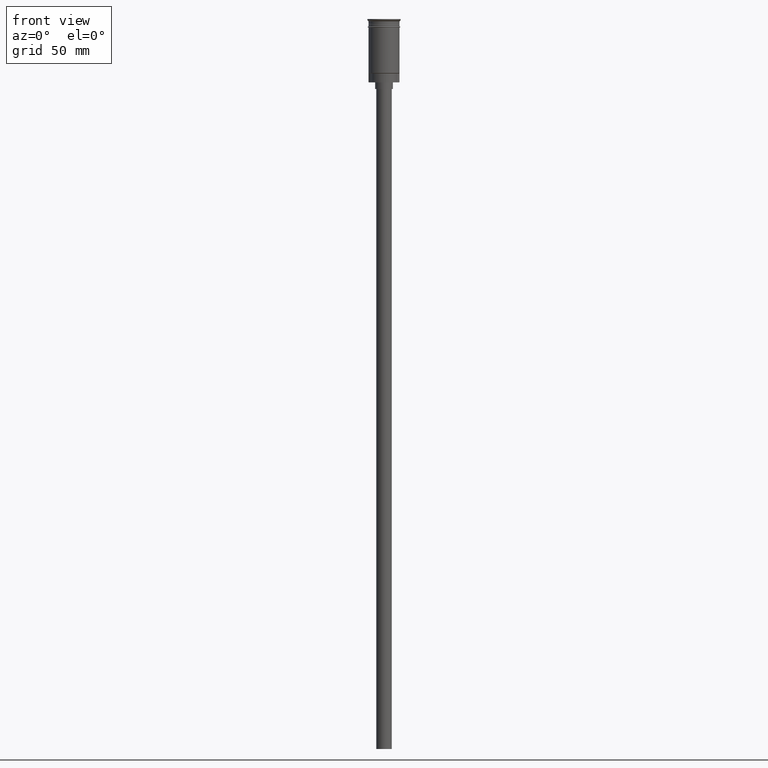
[diagram: clean part render]
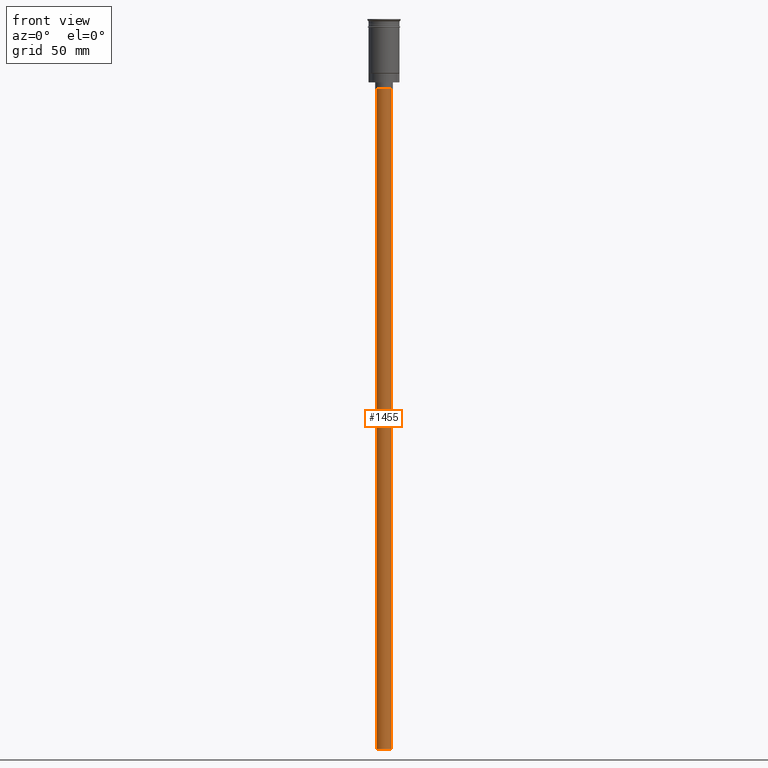
[diagram: same view with one face highlighted and labeled with its STEP entity id]
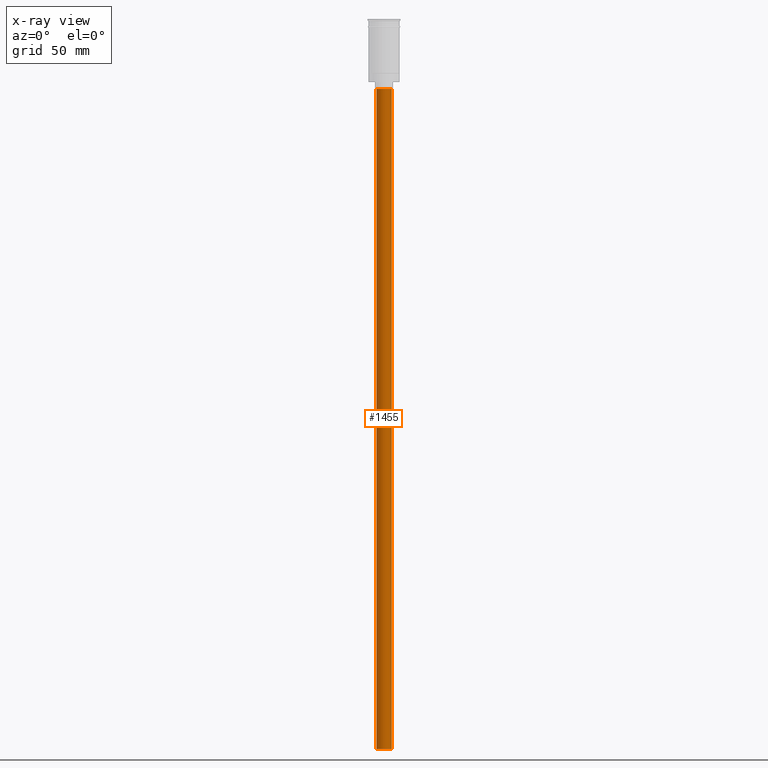
[diagram: x-ray of the same camera — body ghosted, the highlighted face saturated]
A machine part, front view. The second image highlights one B-rep face of the part: STEP entity #1455.
The next image is the same camera in x-ray: the body ghosted, the highlighted face saturated — about 0% of this face is hidden behind the body in this view.
In plain terms, the highlighted cylindrical surface (edge-blend (fillet) strip) has radius 3.5 mm, axis along (-0, -0, 1).
Its self-contained STEP definition (entity closure, byte-faithful):
#33 = VECTOR ( 'NONE', #124, 1000.000000000000000 ) ;
#65 = VERTEX_POINT ( 'NONE', #1111 ) ;
#124 = DIRECTION ( 'NONE',  ( -0.000000000000000000, -0.000000000000000000, 1.000000000000000000 ) ) ;
#141 = DIRECTION ( 'NONE',  ( 0.000000000000000000, 0.000000000000000000, -1.000000000000000000 ) ) ;
#174 = CYLINDRICAL_SURFACE ( 'NONE', #1182, 3.500000000000000444 ) ;
#203 = DIRECTION ( 'NONE',  ( -1.000000000000000000, 0.000000000000000000, 0.000000000000000000 ) ) ;
#237 = EDGE_CURVE ( 'NONE', #65, #1551, #1162, .T. ) ;
#271 = CARTESIAN_POINT ( 'NONE',  ( 0.000000000000000000, 0.000000000000000000, -328.5000000000000000 ) ) ;
#283 = DIRECTION ( 'NONE',  ( -1.000000000000000000, 0.000000000000000000, 0.000000000000000000 ) ) ;
#336 = CARTESIAN_POINT ( 'NONE',  ( -3.500000000000000444, 4.286263797015737088E-16, -31.50000000000000000 ) ) ;
#394 = DIRECTION ( 'NONE',  ( -0.000000000000000000, -0.000000000000000000, 1.000000000000000000 ) ) ;
#412 = CIRCLE ( 'NONE', #1254, 3.500000000000000444 ) ;
#444 = VERTEX_POINT ( 'NONE', #1206 ) ;
#573 = EDGE_LOOP ( 'NONE', ( #1472, #987, #1432, #881 ) ) ;
#617 = CIRCLE ( 'NONE', #1151, 3.500000000000000444 ) ;
#655 = DIRECTION ( 'NONE',  ( 1.000000000000000000, 0.000000000000000000, 0.000000000000000000 ) ) ;
#724 = LINE ( 'NONE', #1125, #33 ) ;
#808 = EDGE_CURVE ( 'NONE', #1291, #1551, #412, .T. ) ;
#881 = ORIENTED_EDGE ( 'NONE', *, *, #808, .T. ) ;
#887 = FACE_OUTER_BOUND ( 'NONE', #573, .T. ) ;
#987 = ORIENTED_EDGE ( 'NONE', *, *, #1050, .F. ) ;
#988 = EDGE_CURVE ( 'NONE', #444, #1291, #724, .T. ) ;
#1050 = EDGE_CURVE ( 'NONE', #444, #65, #617, .T. ) ;
#1093 = CARTESIAN_POINT ( 'NONE',  ( 0.000000000000000000, 0.000000000000000000, -31.50000000000000000 ) ) ;
#1111 = CARTESIAN_POINT ( 'NONE',  ( -3.500000000000000444, 4.286263797015737088E-16, -328.5000000000000000 ) ) ;
#1125 = CARTESIAN_POINT ( 'NONE',  ( 3.500000000000000444, 0.000000000000000000, -328.5000000000000000 ) ) ;
#1151 = AXIS2_PLACEMENT_3D ( 'NONE', #1362, #141, #283 ) ;
#1162 = LINE ( 'NONE', #1415, #1561 ) ;
#1182 = AXIS2_PLACEMENT_3D ( 'NONE', #271, #1411, #655 ) ;
#1206 = CARTESIAN_POINT ( 'NONE',  ( 3.500000000000000444, 0.000000000000000000, -328.5000000000000000 ) ) ;
#1254 = AXIS2_PLACEMENT_3D ( 'NONE', #1093, #1310, #203 ) ;
#1291 = VERTEX_POINT ( 'NONE', #1425 ) ;
#1310 = DIRECTION ( 'NONE',  ( 0.000000000000000000, 0.000000000000000000, -1.000000000000000000 ) ) ;
#1362 = CARTESIAN_POINT ( 'NONE',  ( 0.000000000000000000, 0.000000000000000000, -328.5000000000000000 ) ) ;
#1411 = DIRECTION ( 'NONE',  ( -0.000000000000000000, -0.000000000000000000, 1.000000000000000000 ) ) ;
#1415 = CARTESIAN_POINT ( 'NONE',  ( -3.500000000000000444, 4.286263797015737088E-16, -328.5000000000000000 ) ) ;
#1425 = CARTESIAN_POINT ( 'NONE',  ( 3.500000000000000444, 0.000000000000000000, -31.50000000000000000 ) ) ;
#1432 = ORIENTED_EDGE ( 'NONE', *, *, #988, .T. ) ;
#1455 = ADVANCED_FACE ( 'NONE', ( #887 ), #174, .T. ) ;
#1472 = ORIENTED_EDGE ( 'NONE', *, *, #237, .F. ) ;
#1551 = VERTEX_POINT ( 'NONE', #336 ) ;
#1561 = VECTOR ( 'NONE', #394, 1000.000000000000000 ) ;